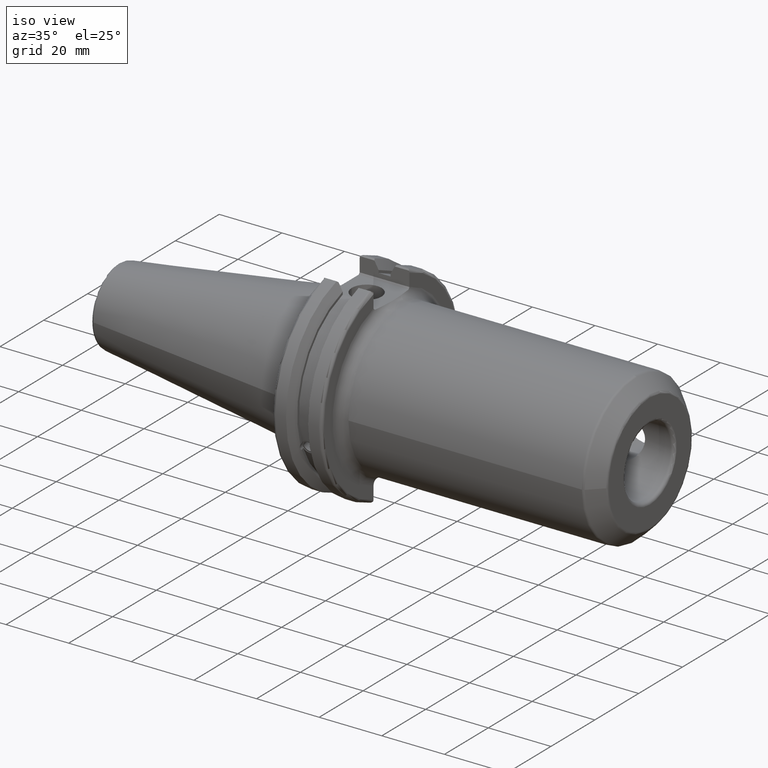
[diagram: clean part render]
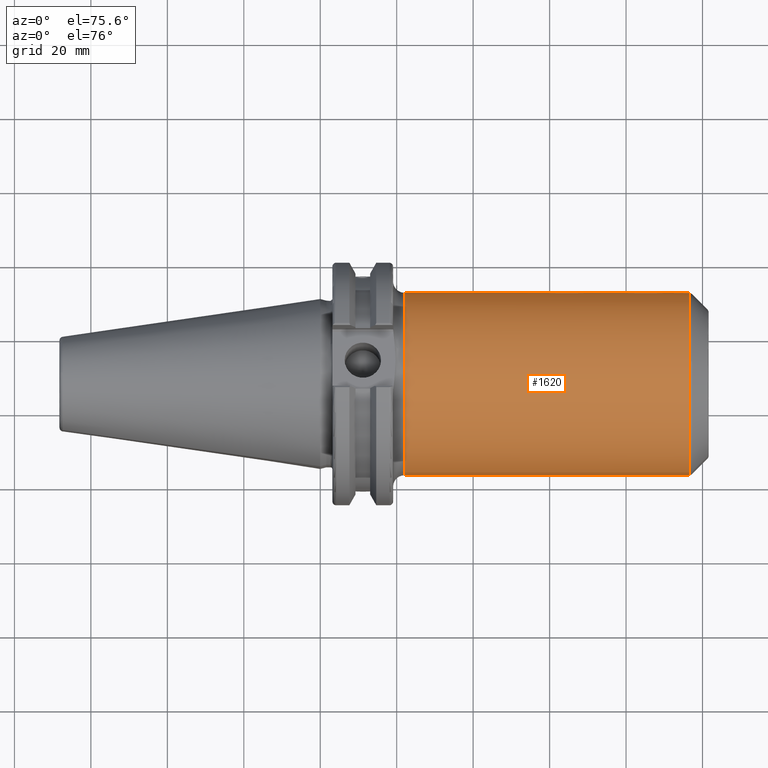
[diagram: tour spotlight — one face highlighted and labeled with its STEP entity id]
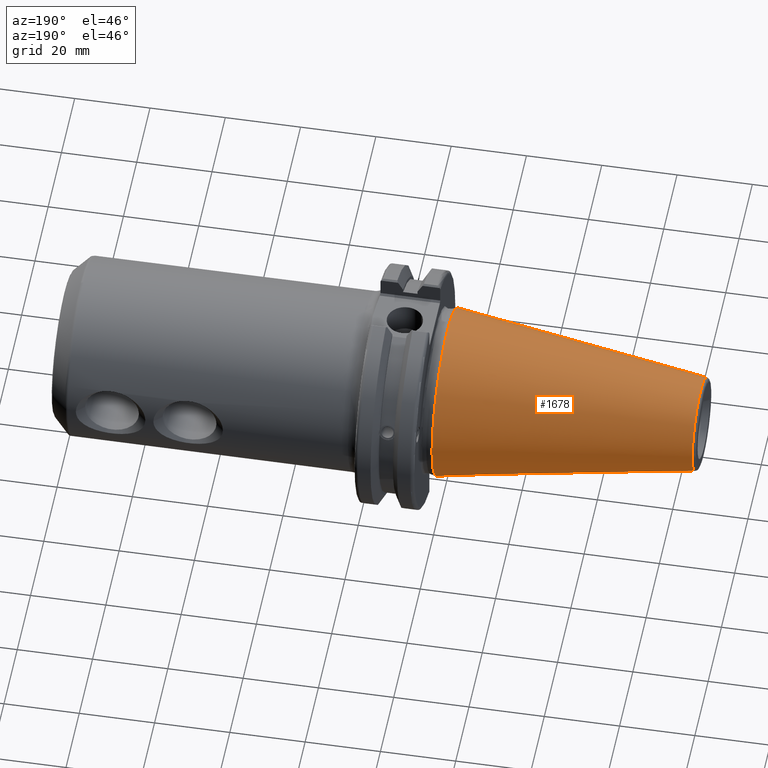
[diagram: tour spotlight — one face highlighted and labeled with its STEP entity id]
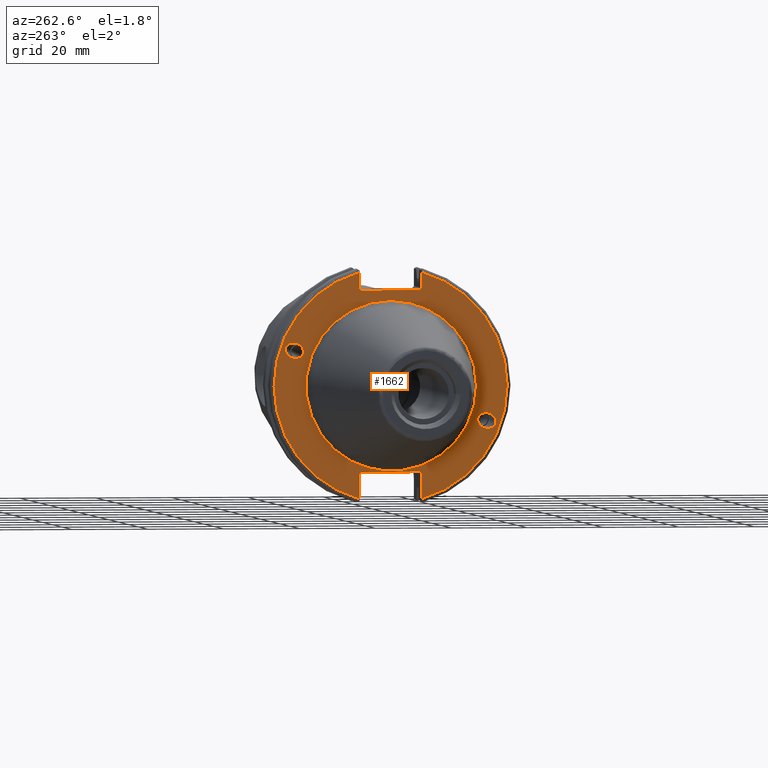
[diagram: tour spotlight — one face highlighted and labeled with its STEP entity id]
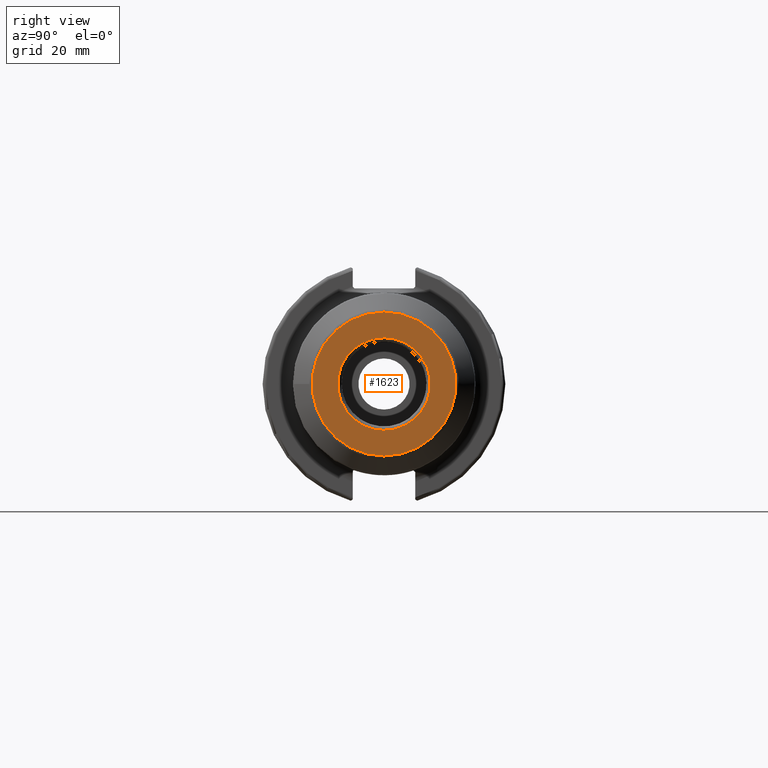
[diagram: tour spotlight — one face highlighted and labeled with its STEP entity id]
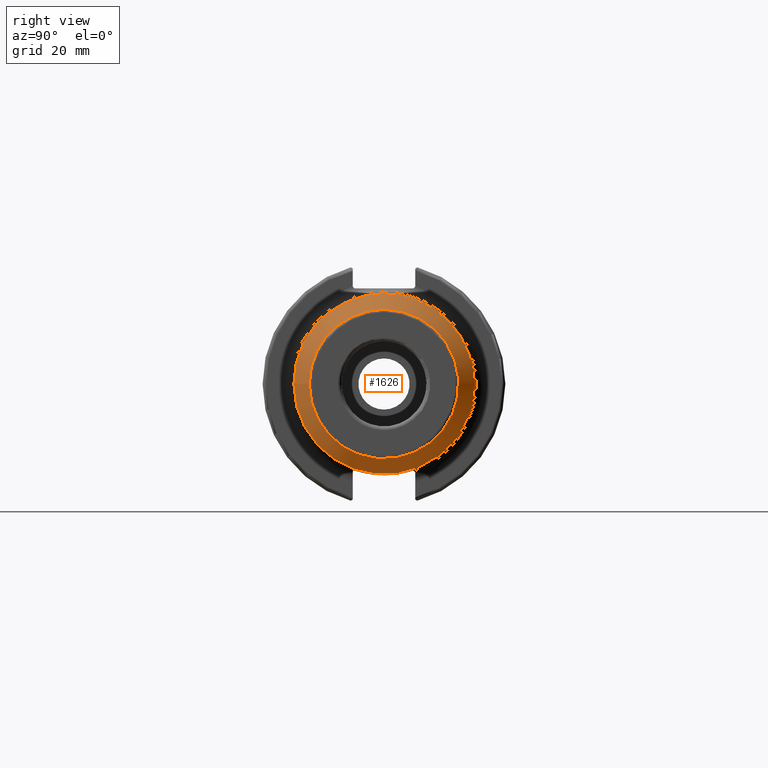
[diagram: tour spotlight — one face highlighted and labeled with its STEP entity id]
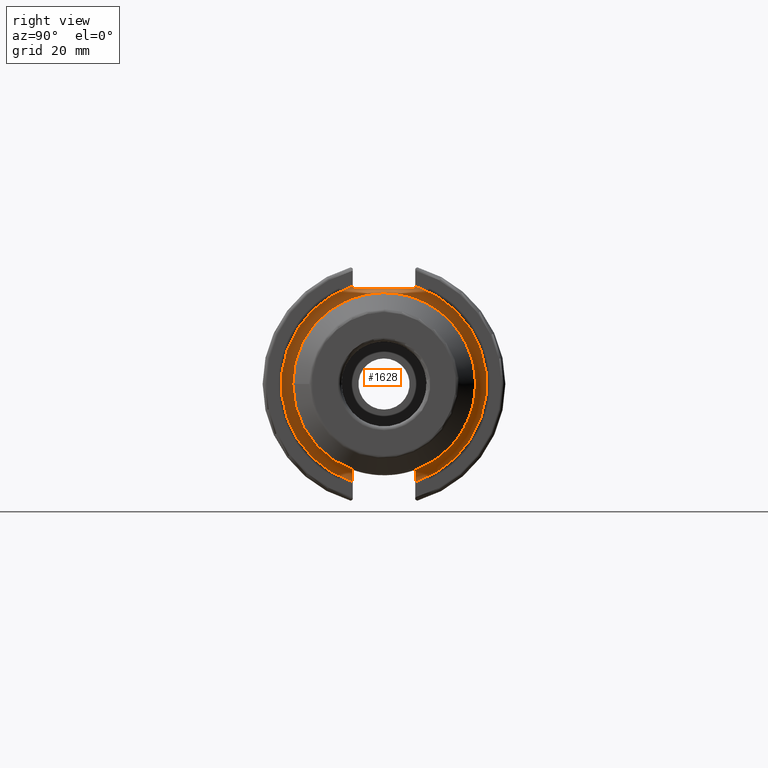
[diagram: tour spotlight — one face highlighted and labeled with its STEP entity id]
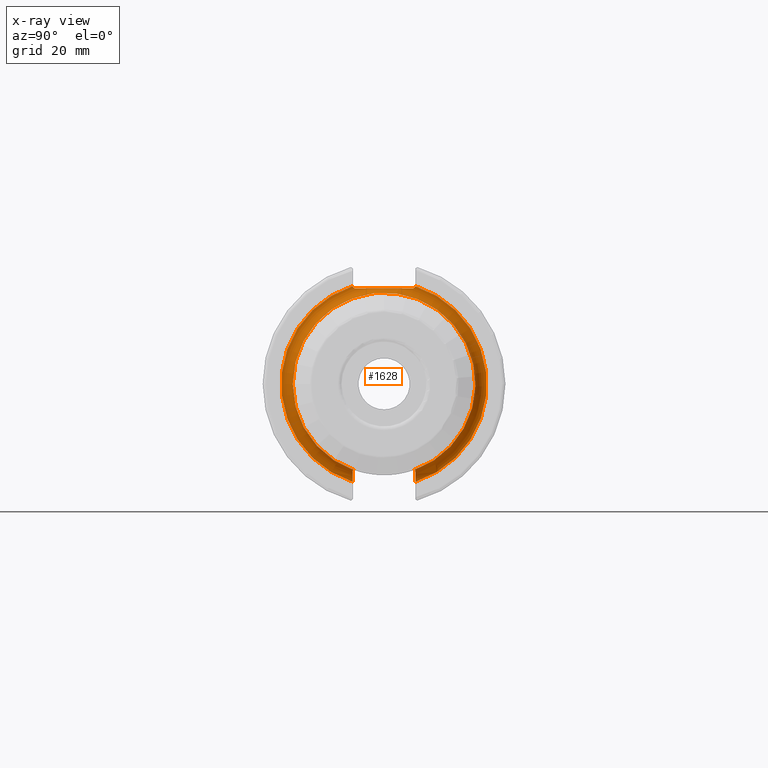
[diagram: x-ray of the same camera — body ghosted, this tour face saturated]
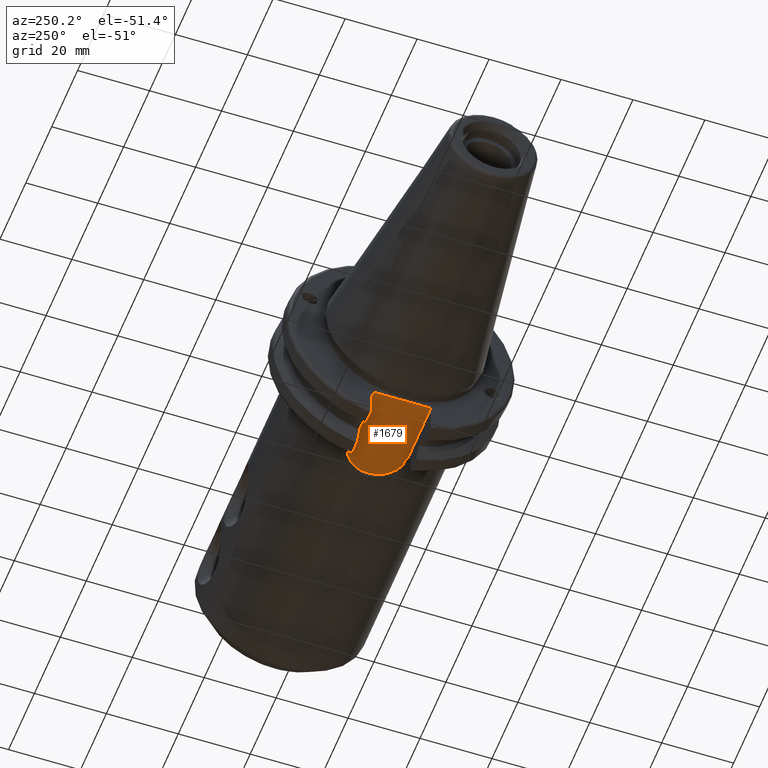
[diagram: tour spotlight — one face highlighted and labeled with its STEP entity id]
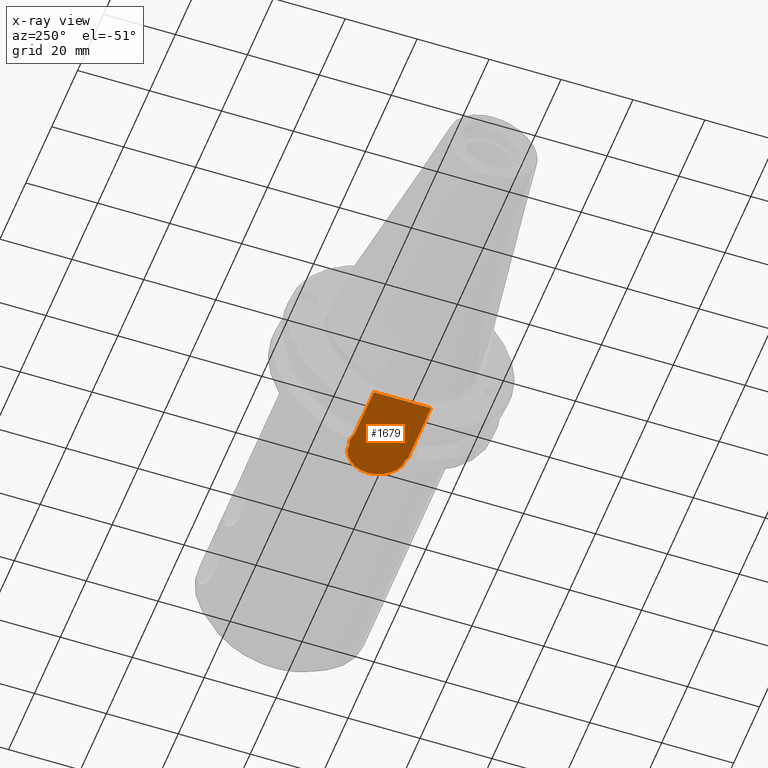
[diagram: x-ray of the same camera — body ghosted, this tour face saturated]
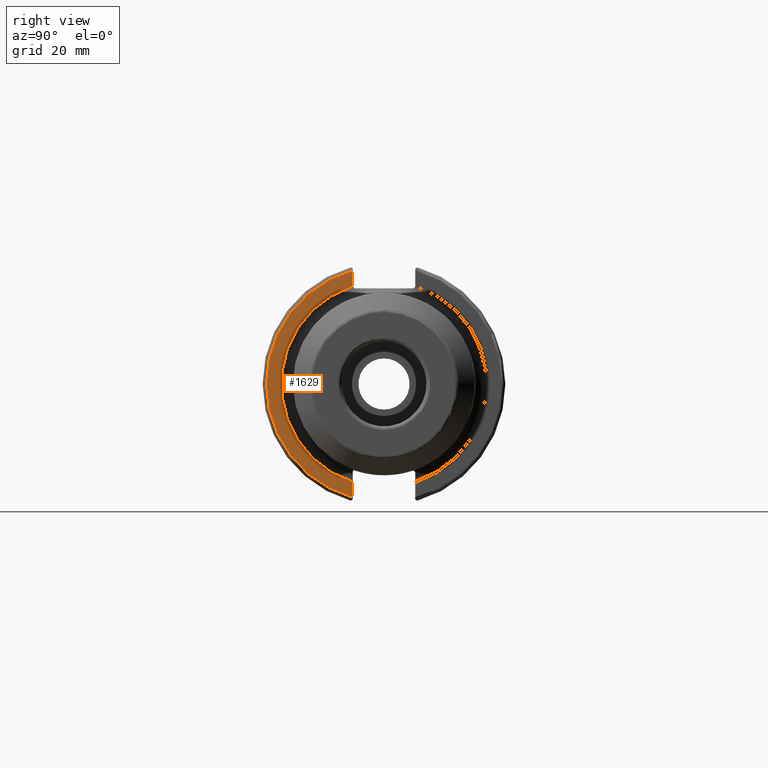
[diagram: tour spotlight — one face highlighted and labeled with its STEP entity id]
A machine part: a face-by-face anatomy tour. The part has 92 B-rep faces; the first image is the clean iso view, then the 8 largest visible faces are spotlighted one at a time (largest first), each with its STEP entity span.

Face 1 — auxiliary view, entity #1620. In plain terms, the highlighted cylindrical surface (bore or boss wall) has radius 23.876 mm, axis along (1, 0, 0).
Definition (entity closure, byte-faithful):
#78=FACE_BOUND('',#248,.T.);
#79=FACE_BOUND('',#249,.T.);
#121=CYLINDRICAL_SURFACE('',#1741,23.876);
#155=FACE_OUTER_BOUND('',#247,.T.);
#247=EDGE_LOOP('',(#1116,#1117,#1118,#1119,#1120,#1121,#1122,#1123,#1124));
#248=EDGE_LOOP('',(#1125,#1126));
#249=EDGE_LOOP('',(#1127,#1128));
#356=CIRCLE('',#1742,23.876);
#357=CIRCLE('',#1743,23.876);
#358=CIRCLE('',#1744,23.876);
#359=CIRCLE('',#1745,23.876);
#436=LINE('',#2608,#525);
#437=LINE('',#2611,#526);
#438=LINE('',#2613,#527);
#525=VECTOR('',#1956,23.876);
#526=VECTOR('',#1959,10.);
#527=VECTOR('',#1960,10.);
#609=B_SPLINE_CURVE_WITH_KNOTS('',3,(#2396,#2397,#2398,#2399,#2400,#2401,
#2402,#2403,#2404,#2405,#2406,#2407,#2408,#2409,#2410,#2411,#2412,#2413),
 .UNSPECIFIED.,.F.,.F.,(4,2,2,2,2,2,2,2,4),(1.30164426528755,1.63350766950352,
1.96537107371949,2.2843298021473,2.60328853057511,2.92224725900291,3.24120598743072,
3.57306939164669,3.90493279586266),.UNSPECIFIED.);
#610=B_SPLINE_CURVE_WITH_KNOTS('',3,(#2417,#2418,#2419,#2420,#2421,#2422,
#2423,#2424,#2425,#2426,#2427,#2428,#2429,#2430,#2431,#2432,#2433,#2434,
#2435),.UNSPECIFIED.,.F.,.F.,(4,2,2,2,3,2,2,2,4),(3.90493279586266,4.23679620007863,
4.56865960429459,4.8876183327224,5.20657706115021,5.52553578957802,5.84449451800583,
6.1763579222218,6.50822132643776),.UNSPECIFIED.);
#613=B_SPLINE_CURVE_WITH_KNOTS('',3,(#2479,#2480,#2481,#2482,#2483,#2484,
#2485,#2486,#2487,#2488,#2489,#2490,#2491,#2492,#2493,#2494,#2495,#2496),
 .UNSPECIFIED.,.F.,.F.,(4,2,2,2,2,2,2,2,4),(1.30164426528755,1.63350766950352,
1.96537107371949,2.2843298021473,2.6032885305751,2.92224725900291,3.24120598743072,
3.57306939164669,3.90493279586266),.UNSPECIFIED.);
#614=B_SPLINE_CURVE_WITH_KNOTS('',3,(#2500,#2501,#2502,#2503,#2504,#2505,
#2506,#2507,#2508,#2509,#2510,#2511,#2512,#2513,#2514,#2515,#2516,#2517,
#2518),.UNSPECIFIED.,.F.,.F.,(4,2,2,2,3,2,2,2,4),(3.90493279586266,4.23679620007862,
4.56865960429459,4.8876183327224,5.20657706115021,5.52553578957802,5.84449451800583,
6.1763579222218,6.50822132643776),.UNSPECIFIED.);
#618=B_SPLINE_CURVE_WITH_KNOTS('',3,(#2574,#2575,#2576,#2577,#2578,#2579,
#2580,#2581,#2582,#2583,#2584,#2585,#2586,#2587,#2588,#2589,#2590,#2591),
 .UNSPECIFIED.,.F.,.F.,(4,2,2,2,2,2,2,2,4),(-2.21524877204995,-2.17873571382765,
-1.86739460133672,-1.556216507248,-1.24503841315929,-0.933860319070577,
-0.622682224981864,-0.311341112490933,-0.274828054268635),.UNSPECIFIED.);
#661=VERTEX_POINT('',#2394);
#662=VERTEX_POINT('',#2395);
#666=VERTEX_POINT('',#2477);
#667=VERTEX_POINT('',#2478);
#674=VERTEX_POINT('',#2572);
#675=VERTEX_POINT('',#2573);
#679=VERTEX_POINT('',#2604);
#680=VERTEX_POINT('',#2605);
#681=VERTEX_POINT('',#2607);
#682=VERTEX_POINT('',#2609);
#683=VERTEX_POINT('',#2612);
#832=EDGE_CURVE('',#661,#662,#609,.T.);
#835=EDGE_CURVE('',#662,#661,#610,.T.);
#839=EDGE_CURVE('',#666,#667,#613,.T.);
#842=EDGE_CURVE('',#667,#666,#614,.T.);
#849=EDGE_CURVE('',#674,#675,#618,.T.);
#854=EDGE_CURVE('',#679,#680,#356,.T.);
#855=EDGE_CURVE('',#679,#681,#436,.T.);
#856=EDGE_CURVE('',#682,#681,#357,.T.);
#857=EDGE_CURVE('',#682,#674,#437,.T.);
#858=EDGE_CURVE('',#675,#683,#438,.T.);
#859=EDGE_CURVE('',#681,#683,#358,.T.);
#860=EDGE_CURVE('',#680,#679,#359,.T.);
#1116=ORIENTED_EDGE('',*,*,#854,.F.);
#1117=ORIENTED_EDGE('',*,*,#855,.T.);
#1118=ORIENTED_EDGE('',*,*,#856,.F.);
#1119=ORIENTED_EDGE('',*,*,#857,.T.);
#1120=ORIENTED_EDGE('',*,*,#849,.T.);
#1121=ORIENTED_EDGE('',*,*,#858,.T.);
#1122=ORIENTED_EDGE('',*,*,#859,.F.);
#1123=ORIENTED_EDGE('',*,*,#855,.F.);
#1124=ORIENTED_EDGE('',*,*,#860,.F.);
#1125=ORIENTED_EDGE('',*,*,#832,.T.);
#1126=ORIENTED_EDGE('',*,*,#835,.T.);
#1127=ORIENTED_EDGE('',*,*,#839,.T.);
#1128=ORIENTED_EDGE('',*,*,#842,.T.);
#1620=ADVANCED_FACE('',(#155,#78,#79),#121,.T.);
#1741=AXIS2_PLACEMENT_3D('',#2603,#1952,#1953);
#1742=AXIS2_PLACEMENT_3D('',#2606,#1954,#1955);
#1743=AXIS2_PLACEMENT_3D('',#2610,#1957,#1958);
#1744=AXIS2_PLACEMENT_3D('',#2614,#1961,#1962);
#1745=AXIS2_PLACEMENT_3D('',#2615,#1963,#1964);
#1952=DIRECTION('center_axis',(1.,0.,0.));
#1953=DIRECTION('ref_axis',(0.,1.,0.));
#1954=DIRECTION('center_axis',(1.,0.,0.));
#1955=DIRECTION('ref_axis',(0.,-1.,1.83697019872103E-16));
#1956=DIRECTION('',(-1.,0.,0.));
#1957=DIRECTION('center_axis',(-1.,0.,0.));
#1958=DIRECTION('ref_axis',(0.,5.0532154980743E-16,1.));
#1959=DIRECTION('',(1.,0.,0.));
#1960=DIRECTION('',(-1.,0.,0.));
#1961=DIRECTION('center_axis',(-1.,0.,0.));
#1962=DIRECTION('ref_axis',(0.,5.0532154980743E-16,1.));
#1963=DIRECTION('center_axis',(1.,0.,0.));
#1964=DIRECTION('ref_axis',(0.,-1.,1.83697019872103E-16));
#2394=CARTESIAN_POINT('',(73.735,23.876,0.));
#2395=CARTESIAN_POINT('',(55.265,23.876,0.));
#2396=CARTESIAN_POINT('Ctrl Pts',(73.735,23.876,8.32667268468867E-16));
#2397=CARTESIAN_POINT('Ctrl Pts',(73.735,23.876,1.10621134738656));
#2398=CARTESIAN_POINT('Ctrl Pts',(73.4431848261695,23.791811177919,2.24928569998615));
#2399=CARTESIAN_POINT('Ctrl Pts',(72.3562104438352,23.5122828537087,4.27575773642004));
#2400=CARTESIAN_POINT('Ctrl Pts',(71.5631280140084,23.3218102094673,5.16093685941274));
#2401=CARTESIAN_POINT('Ctrl Pts',(69.8704478059234,22.9903794553923,6.47673113367354));
#2402=CARTESIAN_POINT('Ctrl Pts',(68.8611809811826,22.8248688716155,7.01621592347484));
#2403=CARTESIAN_POINT('Ctrl Pts',(66.7077369051844,22.5950721774041,7.72428810806431));
#2404=CARTESIAN_POINT('Ctrl Pts',(65.563195761426,22.5337168771105,7.89271687711051));
#2405=CARTESIAN_POINT('Ctrl Pts',(63.436804238574,22.5337168771105,7.89271687711051));
#2406=CARTESIAN_POINT('Ctrl Pts',(62.2922630948156,22.5950721774041,7.72428810806431));
#2407=CARTESIAN_POINT('Ctrl Pts',(60.1388190188174,22.8248688716155,7.01621592347484));
#2408=CARTESIAN_POINT('Ctrl Pts',(59.1295521940765,22.9903794553923,6.47673113367354));
#2409=CARTESIAN_POINT('Ctrl Pts',(57.4368719859916,23.3218102094673,5.16093685941274));
#2410=CARTESIAN_POINT('Ctrl Pts',(56.6437895561648,23.5122828537087,4.27575773642004));
#2411=CARTESIAN_POINT('Ctrl Pts',(55.5568151738305,23.791811177919,2.24928569998615));
#2412=CARTESIAN_POINT('Ctrl Pts',(55.265,23.876,1.10621134738656));
#2413=CARTESIAN_POINT('Ctrl Pts',(55.265,23.876,1.38777878078145E-15));
#2417=CARTESIAN_POINT('Ctrl Pts',(55.265,23.876,2.63677968348475E-15));
#2418=CARTESIAN_POINT('Ctrl Pts',(55.265,23.876,-1.10621134738656));
#2419=CARTESIAN_POINT('Ctrl Pts',(55.5568151738305,23.791811177919,-2.24928569998615));
#2420=CARTESIAN_POINT('Ctrl Pts',(56.6437895561648,23.5122828537087,-4.27575773642004));
#2421=CARTESIAN_POINT('Ctrl Pts',(57.4368719859916,23.3218102094673,-5.16093685941274));
#2422=CARTESIAN_POINT('Ctrl Pts',(59.1295521940765,22.9903794553923,-6.47673113367354));
#2423=CARTESIAN_POINT('Ctrl Pts',(60.1388190188173,22.8248688716155,-7.01621592347483));
#2424=CARTESIAN_POINT('Ctrl Pts',(62.2922630948156,22.5950721774041,-7.72428810806431));
#2425=CARTESIAN_POINT('Ctrl Pts',(63.436804238574,22.5337168771105,-7.89271687711051));
#2426=CARTESIAN_POINT('Ctrl Pts',(64.5,22.5337168771105,-7.89271687711051));
#2427=CARTESIAN_POINT('Ctrl Pts',(65.563195761426,22.5337168771105,-7.89271687711051));
#2428=CARTESIAN_POINT('Ctrl Pts',(66.7077369051844,22.5950721774041,-7.72428810806431));
#2429=CARTESIAN_POINT('Ctrl Pts',(68.8611809811826,22.8248688716155,-7.01621592347484));
#2430=CARTESIAN_POINT('Ctrl Pts',(69.8704478059234,22.9903794553923,-6.47673113367354));
#2431=CARTESIAN_POINT('Ctrl Pts',(71.5631280140084,23.3218102094673,-5.16093685941274));
#2432=CARTESIAN_POINT('Ctrl Pts',(72.3562104438352,23.5122828537087,-4.27575773642004));
#2433=CARTESIAN_POINT('Ctrl Pts',(73.4431848261695,23.791811177919,-2.24928569998615));
#2434=CARTESIAN_POINT('Ctrl Pts',(73.735,23.876,-1.10621134738656));
#2435=CARTESIAN_POINT('Ctrl Pts',(73.735,23.876,-1.66533453693773E-15));
#2477=CARTESIAN_POINT('',(94.335,23.876,0.));
#2478=CARTESIAN_POINT('',(75.865,23.876,0.));
#2479=CARTESIAN_POINT('Ctrl Pts',(94.335,23.876,-2.4980018054066E-15));
#2480=CARTESIAN_POINT('Ctrl Pts',(94.335,23.876,1.10621134738656));
#2481=CARTESIAN_POINT('Ctrl Pts',(94.0431848261695,23.791811177919,2.24928569998616));
#2482=CARTESIAN_POINT('Ctrl Pts',(92.9562104438352,23.5122828537087,4.27575773642005));
#2483=CARTESIAN_POINT('Ctrl Pts',(92.1631280140084,23.3218102094673,5.16093685941274));
#2484=CARTESIAN_POINT('Ctrl Pts',(90.4704478059235,22.9903794553923,6.47673113367354));
#2485=CARTESIAN_POINT('Ctrl Pts',(89.4611809811826,22.8248688716155,7.01621592347483));
#2486=CARTESIAN_POINT('Ctrl Pts',(87.3077369051844,22.5950721774041,7.72428810806431));
#2487=CARTESIAN_POINT('Ctrl Pts',(86.163195761426,22.5337168771105,7.89271687711051));
#2488=CARTESIAN_POINT('Ctrl Pts',(84.036804238574,22.5337168771105,7.89271687711051));
#2489=CARTESIAN_POINT('Ctrl Pts',(82.8922630948156,22.5950721774041,7.72428810806431));
#2490=CARTESIAN_POINT('Ctrl Pts',(80.7388190188174,22.8248688716155,7.01621592347483));
#2491=CARTESIAN_POINT('Ctrl Pts',(79.7295521940765,22.9903794553923,6.47673113367354));
#2492=CARTESIAN_POINT('Ctrl Pts',(78.0368719859916,23.3218102094673,5.16093685941274));
#2493=CARTESIAN_POINT('Ctrl Pts',(77.2437895561648,23.5122828537087,4.27575773642005));
#2494=CARTESIAN_POINT('Ctrl Pts',(76.1568151738305,23.791811177919,2.24928569998616));
#2495=CARTESIAN_POINT('Ctrl Pts',(75.865,23.876,1.10621134738656));
#2496=CARTESIAN_POINT('Ctrl Pts',(75.865,23.876,6.93889390390723E-16));
#2500=CARTESIAN_POINT('Ctrl Pts',(75.865,23.876,3.60822483003176E-15));
#2501=CARTESIAN_POINT('Ctrl Pts',(75.865,23.876,-1.10621134738656));
#2502=CARTESIAN_POINT('Ctrl Pts',(76.1568151738305,23.791811177919,-2.24928569998615));
#2503=CARTESIAN_POINT('Ctrl Pts',(77.2437895561648,23.5122828537087,-4.27575773642004));
#2504=CARTESIAN_POINT('Ctrl Pts',(78.0368719859916,23.3218102094673,-5.16093685941274));
#2505=CARTESIAN_POINT('Ctrl Pts',(79.7295521940765,22.9903794553923,-6.47673113367354));
#2506=CARTESIAN_POINT('Ctrl Pts',(80.7388190188174,22.8248688716155,-7.01621592347483));
#2507=CARTESIAN_POINT('Ctrl Pts',(82.8922630948156,22.5950721774041,-7.72428810806431));
#2508=CARTESIAN_POINT('Ctrl Pts',(84.036804238574,22.5337168771105,-7.89271687711051));
#2509=CARTESIAN_POINT('Ctrl Pts',(85.1,22.5337168771105,-7.89271687711051));
#2510=CARTESIAN_POINT('Ctrl Pts',(86.163195761426,22.5337168771105,-7.89271687711051));
#2511=CARTESIAN_POINT('Ctrl Pts',(87.3077369051844,22.5950721774041,-7.72428810806431));
#2512=CARTESIAN_POINT('Ctrl Pts',(89.4611809811826,22.8248688716155,-7.01621592347483));
#2513=CARTESIAN_POINT('Ctrl Pts',(90.4704478059235,22.9903794553923,-6.47673113367354));
#2514=CARTESIAN_POINT('Ctrl Pts',(92.1631280140084,23.3218102094673,-5.16093685941274));
#2515=CARTESIAN_POINT('Ctrl Pts',(92.9562104438352,23.5122828537087,-4.27575773642005));
#2516=CARTESIAN_POINT('Ctrl Pts',(94.0431848261695,23.791811177919,-2.24928569998616));
#2517=CARTESIAN_POINT('Ctrl Pts',(94.335,23.876,-1.10621134738656));
#2518=CARTESIAN_POINT('Ctrl Pts',(94.335,23.876,-8.32667268468867E-16));
#2572=CARTESIAN_POINT('',(23.7729605449145,-7.70086852244601,-22.6));
#2573=CARTESIAN_POINT('',(23.7729605449145,7.70086852244601,-22.6));
#2574=CARTESIAN_POINT('Ctrl Pts',(23.7729605449145,-7.70086852244601,-22.6));
#2575=CARTESIAN_POINT('Ctrl Pts',(23.893336415216,-7.65728860987094,-22.6148496980956));
#2576=CARTESIAN_POINT('Ctrl Pts',(24.0127084469914,-7.61087758138303,-22.6305237376198));
#2577=CARTESIAN_POINT('Ctrl Pts',(25.1383477818503,-7.14258431918495,-22.7868848796164));
#2578=CARTESIAN_POINT('Ctrl Pts',(26.0535724938508,-6.5138365819848,-22.9823442766192));
#2579=CARTESIAN_POINT('Ctrl Pts',(27.4984582113923,-5.06895086444339,-23.3435938047945));
#2580=CARTESIAN_POINT('Ctrl Pts',(28.1274966869255,-4.15357641752024,-23.5339055317585));
#2581=CARTESIAN_POINT('Ctrl Pts',(28.9659904749666,-2.13804786116067,-23.8017994691804));
#2582=CARTESIAN_POINT('Ctrl Pts',(29.175,-1.03726031362904,-23.876));
#2583=CARTESIAN_POINT('Ctrl Pts',(29.175,1.03726031362905,-23.876));
#2584=CARTESIAN_POINT('Ctrl Pts',(28.9659904749666,2.13804786116067,-23.8017994691804));
#2585=CARTESIAN_POINT('Ctrl Pts',(28.1274966869255,4.15357641752024,-23.5339055317585));
#2586=CARTESIAN_POINT('Ctrl Pts',(27.4984582113923,5.06895086444339,-23.3435938047945));
#2587=CARTESIAN_POINT('Ctrl Pts',(26.0535724938508,6.5138365819848,-22.9823442766192));
#2588=CARTESIAN_POINT('Ctrl Pts',(25.1383477818503,7.14258431918494,-22.7868848796164));
#2589=CARTESIAN_POINT('Ctrl Pts',(24.0127084469914,7.61087758138303,-22.6305237376198));
#2590=CARTESIAN_POINT('Ctrl Pts',(23.893336415216,7.65728860987094,-22.6148496980956));
#2591=CARTESIAN_POINT('Ctrl Pts',(23.7729605449145,7.70086852244602,-22.6));
#2603=CARTESIAN_POINT('Origin',(58.012,0.,0.));
#2604=CARTESIAN_POINT('',(96.5597864376269,-23.876,-2.92396669764422E-15));
#2605=CARTESIAN_POINT('',(96.5597864376269,-2.92396669764422E-15,23.876));
#2606=CARTESIAN_POINT('Origin',(96.5597864376269,0.,0.));
#2607=CARTESIAN_POINT('',(22.05,-23.876,-2.92396669764422E-15));
#2608=CARTESIAN_POINT('',(58.012,-23.876,-2.92396669764422E-15));
#2609=CARTESIAN_POINT('',(22.05,-7.70086852244601,-22.6));
#2610=CARTESIAN_POINT('Origin',(22.05,0.,0.));
#2611=CARTESIAN_POINT('',(58.012,-7.70086852244601,-22.6));
#2612=CARTESIAN_POINT('',(22.05,7.70086852244601,-22.6));
#2613=CARTESIAN_POINT('',(58.012,7.70086852244601,-22.6));
#2614=CARTESIAN_POINT('Origin',(22.05,0.,0.));
#2615=CARTESIAN_POINT('Origin',(96.5597864376269,0.,0.));

Face 2 — auxiliary view, entity #1678. In plain terms, the highlighted conical surface has half-angle 8.297 deg.
Definition (entity closure, byte-faithful):
#213=FACE_OUTER_BOUND('',#322,.T.);
#322=EDGE_LOOP('',(#1469,#1470,#1471,#1472,#1473));
#414=CIRCLE('',#1874,12.3966635780937);
#415=CIRCLE('',#1875,12.3966635780937);
#419=CIRCLE('',#1881,22.225);
#502=LINE('',#3369,#591);
#591=VECTOR('',#2300,17.2484375);
#817=VERTEX_POINT('',#3356);
#818=VERTEX_POINT('',#3357);
#821=VERTEX_POINT('',#3367);
#1051=EDGE_CURVE('',#817,#818,#414,.T.);
#1052=EDGE_CURVE('',#818,#817,#415,.T.);
#1056=EDGE_CURVE('',#821,#821,#419,.T.);
#1057=EDGE_CURVE('',#821,#818,#502,.T.);
#1469=ORIENTED_EDGE('',*,*,#1056,.F.);
#1470=ORIENTED_EDGE('',*,*,#1057,.T.);
#1471=ORIENTED_EDGE('',*,*,#1051,.F.);
#1472=ORIENTED_EDGE('',*,*,#1052,.F.);
#1473=ORIENTED_EDGE('',*,*,#1057,.F.);
#1607=CONICAL_SURFACE('',#1880,17.2484375,0.144812498238939);
#1678=ADVANCED_FACE('',(#213),#1607,.T.);
#1874=AXIS2_PLACEMENT_3D('',#3358,#2284,#2285);
#1875=AXIS2_PLACEMENT_3D('',#3359,#2286,#2287);
#1880=AXIS2_PLACEMENT_3D('',#3366,#2296,#2297);
#1881=AXIS2_PLACEMENT_3D('',#3368,#2298,#2299);
#2284=DIRECTION('center_axis',(-1.,0.,0.));
#2285=DIRECTION('ref_axis',(0.,-1.,3.06161699786838E-17));
#2286=DIRECTION('center_axis',(-1.,0.,0.));
#2287=DIRECTION('ref_axis',(0.,-1.,3.06161699786838E-17));
#2296=DIRECTION('center_axis',(1.,0.,0.));
#2297=DIRECTION('ref_axis',(0.,1.,0.));
#2298=DIRECTION('center_axis',(1.,0.,0.));
#2299=DIRECTION('ref_axis',(0.,0.,-1.));
#2300=DIRECTION('',(-0.989532981063282,0.144306893071729,1.76724974695192E-17));
#3356=CARTESIAN_POINT('',(-67.3943068930717,-1.5181534371019E-15,12.3966635780937));
#3357=CARTESIAN_POINT('',(-67.3943068930718,-12.3966635780937,-1.5181534371019E-15));
#3358=CARTESIAN_POINT('Origin',(-67.3943068930717,0.,-1.89769179637738E-15));
#3359=CARTESIAN_POINT('Origin',(-67.3943068930717,0.,-1.89769179637738E-15));
#3366=CARTESIAN_POINT('Origin',(-34.125,0.,0.));
#3367=CARTESIAN_POINT('',(0.,-22.225,-2.72177751110499E-15));
#3368=CARTESIAN_POINT('Origin',(0.,0.,0.));
#3369=CARTESIAN_POINT('',(-34.125,-17.2484375,-2.11232437746682E-15));

Face 3 — auxiliary view, entity #1662. In plain terms, the highlighted planar face has unit normal (-1, 0, 0).
Definition (entity closure, byte-faithful):
#55=PLANE('',#1851);
#91=FACE_BOUND('',#303,.T.);
#92=FACE_BOUND('',#304,.T.);
#93=FACE_BOUND('',#305,.T.);
#106=ELLIPSE('',#1800,2.44154917752291,2.);
#115=ELLIPSE('',#1843,2.44154917752291,2.);
#197=FACE_OUTER_BOUND('',#302,.T.);
#302=EDGE_LOOP('',(#1358,#1359,#1360,#1361,#1362,#1363,#1364,#1365,#1366,
#1367,#1368));
#303=EDGE_LOOP('',(#1369));
#304=EDGE_LOOP('',(#1370));
#305=EDGE_LOOP('',(#1371));
#404=CIRCLE('',#1849,22.3);
#406=CIRCLE('',#1852,30.75);
#407=CIRCLE('',#1853,30.75);
#440=LINE('',#2620,#529);
#478=LINE('',#3147,#567);
#479=LINE('',#3151,#568);
#480=LINE('',#3153,#569);
#481=LINE('',#3155,#570);
#482=LINE('',#3157,#571);
#483=LINE('',#3159,#572);
#484=LINE('',#3162,#573);
#485=LINE('',#3163,#574);
#529=VECTOR('',#1968,10.);
#567=VECTOR('',#2216,10.);
#568=VECTOR('',#2219,10.);
#569=VECTOR('',#2220,10.);
#570=VECTOR('',#2221,10.);
#571=VECTOR('',#2222,10.);
#572=VECTOR('',#2223,10.);
#573=VECTOR('',#2226,10.);
#574=VECTOR('',#2227,10.);
#684=VERTEX_POINT('',#2617);
#685=VERTEX_POINT('',#2619);
#737=VERTEX_POINT('',#2946);
#777=VERTEX_POINT('',#3129);
#781=VERTEX_POINT('',#3140);
#782=VERTEX_POINT('',#3145);
#783=VERTEX_POINT('',#3146);
#784=VERTEX_POINT('',#3148);
#785=VERTEX_POINT('',#3150);
#786=VERTEX_POINT('',#3152);
#787=VERTEX_POINT('',#3154);
#788=VERTEX_POINT('',#3156);
#789=VERTEX_POINT('',#3158);
#790=VERTEX_POINT('',#3160);
#862=EDGE_CURVE('',#684,#685,#440,.T.);
#934=EDGE_CURVE('',#737,#737,#106,.T.);
#990=EDGE_CURVE('',#777,#777,#115,.T.);
#995=EDGE_CURVE('',#781,#781,#404,.T.);
#997=EDGE_CURVE('',#782,#783,#478,.T.);
#998=EDGE_CURVE('',#784,#783,#406,.T.);
#999=EDGE_CURVE('',#784,#785,#479,.T.);
#1000=EDGE_CURVE('',#786,#785,#480,.T.);
#1001=EDGE_CURVE('',#786,#787,#481,.T.);
#1002=EDGE_CURVE('',#788,#787,#482,.T.);
#1003=EDGE_CURVE('',#788,#789,#483,.T.);
#1004=EDGE_CURVE('',#790,#789,#407,.T.);
#1005=EDGE_CURVE('',#790,#685,#484,.T.);
#1006=EDGE_CURVE('',#684,#782,#485,.T.);
#1358=ORIENTED_EDGE('',*,*,#997,.T.);
#1359=ORIENTED_EDGE('',*,*,#998,.F.);
#1360=ORIENTED_EDGE('',*,*,#999,.T.);
#1361=ORIENTED_EDGE('',*,*,#1000,.F.);
#1362=ORIENTED_EDGE('',*,*,#1001,.T.);
#1363=ORIENTED_EDGE('',*,*,#1002,.F.);
#1364=ORIENTED_EDGE('',*,*,#1003,.T.);
#1365=ORIENTED_EDGE('',*,*,#1004,.F.);
#1366=ORIENTED_EDGE('',*,*,#1005,.T.);
#1367=ORIENTED_EDGE('',*,*,#862,.F.);
#1368=ORIENTED_EDGE('',*,*,#1006,.T.);
#1369=ORIENTED_EDGE('',*,*,#934,.T.);
#1370=ORIENTED_EDGE('',*,*,#990,.T.);
#1371=ORIENTED_EDGE('',*,*,#995,.F.);
#1662=ADVANCED_FACE('',(#197,#91,#92,#93),#55,.T.);
#1800=AXIS2_PLACEMENT_3D('',#2948,#2094,#2095);
#1843=AXIS2_PLACEMENT_3D('',#3131,#2197,#2198);
#1849=AXIS2_PLACEMENT_3D('',#3142,#2210,#2211);
#1851=AXIS2_PLACEMENT_3D('',#3144,#2214,#2215);
#1852=AXIS2_PLACEMENT_3D('',#3149,#2217,#2218);
#1853=AXIS2_PLACEMENT_3D('',#3161,#2224,#2225);
#1968=DIRECTION('',(0.,0.707106781186549,-0.707106781186546));
#2094=DIRECTION('center_axis',(1.,0.,0.));
#2095=DIRECTION('ref_axis',(0.,-0.939692620785912,-0.34202014332566));
#2197=DIRECTION('center_axis',(1.,0.,0.));
#2198=DIRECTION('ref_axis',(0.,0.939692620785912,0.34202014332566));
#2210=DIRECTION('center_axis',(-1.,0.,0.));
#2211=DIRECTION('ref_axis',(0.,-1.,1.83697019872103E-16));
#2214=DIRECTION('center_axis',(-1.,0.,0.));
#2215=DIRECTION('ref_axis',(0.,0.,1.));
#2216=DIRECTION('',(0.,0.,-1.));
#2217=DIRECTION('center_axis',(1.,0.,0.));
#2218=DIRECTION('ref_axis',(0.,-1.,1.60812264967664E-16));
#2219=DIRECTION('',(0.,0.,-1.));
#2220=DIRECTION('',(0.,-0.70710678118655,0.707106781186545));
#2221=DIRECTION('',(0.,1.,0.));
#2222=DIRECTION('',(0.,-0.707106781186549,-0.707106781186546));
#2223=DIRECTION('',(0.,0.,1.));
#2224=DIRECTION('center_axis',(1.,0.,0.));
#2225=DIRECTION('ref_axis',(0.,1.,1.60812264967664E-16));
#2226=DIRECTION('',(0.,0.,1.));
#2227=DIRECTION('',(0.,-1.,0.));
#2617=CARTESIAN_POINT('',(3.175,7.69,-22.6));
#2619=CARTESIAN_POINT('',(3.175,8.18999999999999,-23.1));
#2620=CARTESIAN_POINT('',(3.175,8.18000000000002,-23.09));
#2946=CARTESIAN_POINT('',(3.175,-23.0773950158153,-8.39948487016003));
#2948=CARTESIAN_POINT('Origin',(3.175,-25.3717007612195,-9.23454386979306));
#3129=CARTESIAN_POINT('',(3.175,23.0773950158153,8.39948487016003));
#3131=CARTESIAN_POINT('Origin',(3.175,25.3717007612195,9.23454386979306));
#3140=CARTESIAN_POINT('',(3.175,-2.7309623620986E-15,22.3));
#3142=CARTESIAN_POINT('Origin',(3.175,0.,0.));
#3144=CARTESIAN_POINT('Origin',(3.175,31.75,0.));
#3145=CARTESIAN_POINT('',(3.175,-8.19,-22.6));
#3146=CARTESIAN_POINT('',(3.175,-8.19,-29.6392712461019));
#3147=CARTESIAN_POINT('',(3.175,-8.19,-11.3));
#3148=CARTESIAN_POINT('',(3.175,-8.18999999999999,29.6392712461019));
#3149=CARTESIAN_POINT('Origin',(3.175,0.,0.));
#3150=CARTESIAN_POINT('',(3.175,-8.18999999999999,25.5));
#3151=CARTESIAN_POINT('',(3.175,-8.18999999999999,12.5));
#3152=CARTESIAN_POINT('',(3.175,-7.68999999999999,25.));
#3153=CARTESIAN_POINT('',(3.175,8.29500000000007,9.01500000000004));
#3154=CARTESIAN_POINT('',(3.175,7.69,25.));
#3155=CARTESIAN_POINT('',(3.175,15.875,25.));
#3156=CARTESIAN_POINT('',(3.175,8.19,25.5));
#3157=CARTESIAN_POINT('',(3.175,7.58000000000002,24.89));
#3158=CARTESIAN_POINT('',(3.175,8.19,29.6392712461019));
#3159=CARTESIAN_POINT('',(3.175,8.19,12.5));
#3160=CARTESIAN_POINT('',(3.175,8.18999999999999,-29.6392712461019));
#3161=CARTESIAN_POINT('Origin',(3.175,0.,0.));
#3162=CARTESIAN_POINT('',(3.175,8.18999999999999,-11.3));
#3163=CARTESIAN_POINT('',(3.175,15.875,-22.6));

Face 4 — right view, entity #1623. In plain terms, the highlighted planar face has unit normal (1, 0, 0).
Definition (entity closure, byte-faithful):
#42=PLANE('',#1752);
#80=FACE_BOUND('',#253,.T.);
#158=FACE_OUTER_BOUND('',#252,.T.);
#252=EDGE_LOOP('',(#1139));
#253=EDGE_LOOP('',(#1140));
#363=CIRCLE('',#1751,12.1125);
#364=CIRCLE('',#1753,18.8357864376269);
#689=VERTEX_POINT('',#2632);
#690=VERTEX_POINT('',#2636);
#868=EDGE_CURVE('',#689,#689,#363,.T.);
#869=EDGE_CURVE('',#690,#690,#364,.T.);
#1139=ORIENTED_EDGE('',*,*,#869,.F.);
#1140=ORIENTED_EDGE('',*,*,#868,.F.);
#1623=ADVANCED_FACE('',(#158,#80),#42,.T.);
#1751=AXIS2_PLACEMENT_3D('',#2634,#1978,#1979);
#1752=AXIS2_PLACEMENT_3D('',#2635,#1980,#1981);
#1753=AXIS2_PLACEMENT_3D('',#2637,#1982,#1983);
#1978=DIRECTION('center_axis',(1.,0.,0.));
#1979=DIRECTION('ref_axis',(0.,-1.,1.83697019872103E-16));
#1980=DIRECTION('center_axis',(1.,0.,0.));
#1981=DIRECTION('ref_axis',(0.,0.,-1.));
#1982=DIRECTION('center_axis',(-1.,0.,0.));
#1983=DIRECTION('ref_axis',(0.,-1.,1.83697019872103E-16));
#2632=CARTESIAN_POINT('',(101.6,-1.48335343546723E-15,12.1125));
#2634=CARTESIAN_POINT('Origin',(101.6,0.,0.));
#2635=CARTESIAN_POINT('Origin',(101.6,11.1125,0.));
#2636=CARTESIAN_POINT('',(101.6,-2.30671855702629E-15,18.8357864376269));
#2637=CARTESIAN_POINT('Origin',(101.6,0.,0.));

Face 5 — right view, entity #1626. In plain terms, the highlighted conical surface has half-angle 45 deg.
Definition (entity closure, byte-faithful):
#161=FACE_OUTER_BOUND('',#258,.T.);
#258=EDGE_LOOP('',(#1155,#1156,#1157,#1158,#1159,#1160));
#367=CIRCLE('',#1758,19.5428932188134);
#368=CIRCLE('',#1759,19.5428932188134);
#369=CIRCLE('',#1761,23.5831067811865);
#370=CIRCLE('',#1762,23.5831067811865);
#443=LINE('',#2650,#532);
#532=VECTOR('',#1999,21.563);
#692=VERTEX_POINT('',#2643);
#693=VERTEX_POINT('',#2645);
#694=VERTEX_POINT('',#2649);
#695=VERTEX_POINT('',#2651);
#873=EDGE_CURVE('',#692,#693,#367,.T.);
#874=EDGE_CURVE('',#693,#692,#368,.T.);
#875=EDGE_CURVE('',#693,#694,#443,.T.);
#876=EDGE_CURVE('',#695,#694,#369,.T.);
#877=EDGE_CURVE('',#694,#695,#370,.T.);
#1155=ORIENTED_EDGE('',*,*,#874,.F.);
#1156=ORIENTED_EDGE('',*,*,#875,.T.);
#1157=ORIENTED_EDGE('',*,*,#876,.F.);
#1158=ORIENTED_EDGE('',*,*,#877,.F.);
#1159=ORIENTED_EDGE('',*,*,#875,.F.);
#1160=ORIENTED_EDGE('',*,*,#873,.F.);
#1602=CONICAL_SURFACE('',#1760,21.563,0.785398163397449);
#1626=ADVANCED_FACE('',(#161),#1602,.T.);
#1758=AXIS2_PLACEMENT_3D('',#2646,#1993,#1994);
#1759=AXIS2_PLACEMENT_3D('',#2647,#1995,#1996);
#1760=AXIS2_PLACEMENT_3D('',#2648,#1997,#1998);
#1761=AXIS2_PLACEMENT_3D('',#2652,#2000,#2001);
#1762=AXIS2_PLACEMENT_3D('',#2653,#2002,#2003);
#1993=DIRECTION('center_axis',(1.,0.,0.));
#1994=DIRECTION('ref_axis',(0.,-1.,3.06161699786838E-17));
#1995=DIRECTION('center_axis',(1.,0.,0.));
#1996=DIRECTION('ref_axis',(0.,-1.,3.06161699786838E-17));
#1997=DIRECTION('center_axis',(-1.,0.,0.));
#1998=DIRECTION('ref_axis',(0.,1.,0.));
#1999=DIRECTION('',(-0.707106781186547,-0.707106781186548,-8.65956056235494E-17));
#2000=DIRECTION('center_axis',(-1.,0.,0.));
#2001=DIRECTION('ref_axis',(0.,-1.,3.06161699786838E-17));
#2002=DIRECTION('center_axis',(-1.,0.,0.));
#2003=DIRECTION('ref_axis',(0.,-1.,3.06161699786838E-17));
#2643=CARTESIAN_POINT('',(101.307106781187,-2.39331416264984E-15,19.5428932188134));
#2645=CARTESIAN_POINT('',(101.307106781187,-19.5428932188134,-2.39331416264984E-15));
#2646=CARTESIAN_POINT('Origin',(101.307106781187,0.,-2.9916427033123E-15));
#2647=CARTESIAN_POINT('Origin',(101.307106781187,0.,-2.9916427033123E-15));
#2648=CARTESIAN_POINT('Origin',(99.287,0.,0.));
#2649=CARTESIAN_POINT('',(97.2668932188135,-23.5831067811866,-2.88809762335303E-15));
#2650=CARTESIAN_POINT('',(99.287,-21.563,-2.64070589300144E-15));
#2651=CARTESIAN_POINT('',(97.2668932188135,-2.88809762335303E-15,23.5831067811865));
#2652=CARTESIAN_POINT('Origin',(97.2668932188135,0.,-3.61012202919129E-15));
#2653=CARTESIAN_POINT('Origin',(97.2668932188135,0.,-3.61012202919129E-15));

Face 6 — right view, entity #1628. An x-ray twin of the same camera follows (body ghosted, this face saturated) — the face is partly hidden behind the body. In plain terms, the highlighted toroidal blend (fillet) surface has major radius 26.876 mm and minor (blend) radius 3 mm.
Definition (entity closure, byte-faithful):
#34=TOROIDAL_SURFACE('',#1765,26.876,3.);
#163=FACE_OUTER_BOUND('',#260,.T.);
#260=EDGE_LOOP('',(#1167,#1168,#1169,#1170,#1171,#1172,#1173,#1174,#1175,
#1176,#1177,#1178,#1179,#1180,#1181,#1182,#1183));
#357=CIRCLE('',#1743,23.876);
#358=CIRCLE('',#1744,23.876);
#372=CIRCLE('',#1766,26.876);
#373=CIRCLE('',#1767,26.876);
#617=B_SPLINE_CURVE_WITH_KNOTS('',3,(#2562,#2563,#2564,#2565,#2566,#2567),
 .UNSPECIFIED.,.F.,.F.,(4,2,4),(-0.386102880067311,-0.324274466434063,-0.290908849014601),
 .UNSPECIFIED.);
#619=B_SPLINE_CURVE_WITH_KNOTS('',3,(#2596,#2597,#2598,#2599),
 .UNSPECIFIED.,.F.,.F.,(4,4),(-0.00990092029625313,0.),.UNSPECIFIED.);
#620=B_SPLINE_CURVE_WITH_KNOTS('',3,(#2623,#2624,#2625,#2626),
 .UNSPECIFIED.,.F.,.F.,(4,4),(1.11119444079567,1.11773294765053),
 .UNSPECIFIED.);
#621=B_SPLINE_CURVE_WITH_KNOTS('',3,(#2657,#2658,#2659,#2660,#2661,#2662,
#2663,#2664),.UNSPECIFIED.,.F.,.F.,(4,2,2,4),(1.24716579775041,1.27283308836636,
1.31785492208874,1.35337360154452),.UNSPECIFIED.);
#622=B_SPLINE_CURVE_WITH_KNOTS('',3,(#2665,#2666,#2667,#2668,#2669,#2670,
#2671,#2672),.UNSPECIFIED.,.F.,.F.,(4,2,2,4),(1.35337360154452,1.3888922810003,
1.43391411472267,1.45958140533862),.UNSPECIFIED.);
#623=B_SPLINE_CURVE_WITH_KNOTS('',3,(#2674,#2675,#2676,#2677,#2678,#2679,
#2680,#2681),.UNSPECIFIED.,.F.,.F.,(4,2,2,4),(1.09937688280076,1.13273906537071,
1.24912971242789,1.36790240305461),.UNSPECIFIED.);
#624=B_SPLINE_CURVE_WITH_KNOTS('',3,(#2685,#2686,#2687,#2688),
 .UNSPECIFIED.,.F.,.F.,(4,4),(0.454409762073988,0.464050132239487),
 .UNSPECIFIED.);
#625=B_SPLINE_CURVE_WITH_KNOTS('',3,(#2690,#2691,#2692,#2693),
 .UNSPECIFIED.,.F.,.F.,(4,4),(0.479510612938579,0.545924532443584),
 .UNSPECIFIED.);
#626=B_SPLINE_CURVE_WITH_KNOTS('',3,(#2695,#2696,#2697,#2698,#2699,#2700,
#2701,#2702,#2703,#2704,#2705,#2706,#2707,#2708),.UNSPECIFIED.,.F.,.F.,
(4,2,2,2,2,2,4),(2.5982442477704,2.69300090795709,3.00822809968691,3.32345529141672,
3.63868248314654,3.95390967487636,4.04866633401975),.UNSPECIFIED.);
#627=B_SPLINE_CURVE_WITH_KNOTS('',3,(#2710,#2711,#2712,#2713),
 .UNSPECIFIED.,.F.,.F.,(4,4),(1.34402426777753,1.41043818841018),
 .UNSPECIFIED.);
#628=B_SPLINE_CURVE_WITH_KNOTS('',3,(#2715,#2716,#2717,#2718),
 .UNSPECIFIED.,.F.,.F.,(4,4),(1.35826203289011,1.36790240305461),
 .UNSPECIFIED.);
#629=B_SPLINE_CURVE_WITH_KNOTS('',3,(#2722,#2723,#2724,#2725,#2726,#2727,
#2728,#2729),.UNSPECIFIED.,.F.,.F.,(4,2,2,4),(0.454409762073988,0.573182452700709,
0.689573099757891,0.722935282327091),.UNSPECIFIED.);
#630=B_SPLINE_CURVE_WITH_KNOTS('',3,(#2730,#2731,#2732,#2733,#2734,#2735),
 .UNSPECIFIED.,.F.,.F.,(4,2,4),(0.722935282327091,0.802140600437802,0.80848220647814),
 .UNSPECIFIED.);
#671=VERTEX_POINT('',#2560);
#672=VERTEX_POINT('',#2561);
#676=VERTEX_POINT('',#2594);
#677=VERTEX_POINT('',#2595);
#681=VERTEX_POINT('',#2607);
#682=VERTEX_POINT('',#2609);
#683=VERTEX_POINT('',#2612);
#686=VERTEX_POINT('',#2621);
#696=VERTEX_POINT('',#2673);
#697=VERTEX_POINT('',#2682);
#698=VERTEX_POINT('',#2684);
#699=VERTEX_POINT('',#2689);
#700=VERTEX_POINT('',#2694);
#701=VERTEX_POINT('',#2709);
#702=VERTEX_POINT('',#2714);
#703=VERTEX_POINT('',#2719);
#704=VERTEX_POINT('',#2721);
#846=EDGE_CURVE('',#671,#672,#617,.T.);
#851=EDGE_CURVE('',#676,#677,#619,.T.);
#856=EDGE_CURVE('',#682,#681,#357,.T.);
#859=EDGE_CURVE('',#681,#683,#358,.T.);
#864=EDGE_CURVE('',#672,#686,#620,.T.);
#879=EDGE_CURVE('',#677,#682,#621,.T.);
#880=EDGE_CURVE('',#683,#671,#622,.T.);
#881=EDGE_CURVE('',#686,#696,#623,.T.);
#882=EDGE_CURVE('',#696,#697,#372,.T.);
#883=EDGE_CURVE('',#698,#697,#624,.F.);
#884=EDGE_CURVE('',#699,#698,#625,.F.);
#885=EDGE_CURVE('',#700,#699,#626,.F.);
#886=EDGE_CURVE('',#701,#700,#627,.F.);
#887=EDGE_CURVE('',#702,#701,#628,.F.);
#888=EDGE_CURVE('',#702,#703,#373,.T.);
#889=EDGE_CURVE('',#704,#703,#629,.F.);
#890=EDGE_CURVE('',#704,#676,#630,.T.);
#1167=ORIENTED_EDGE('',*,*,#879,.T.);
#1168=ORIENTED_EDGE('',*,*,#856,.T.);
#1169=ORIENTED_EDGE('',*,*,#859,.T.);
#1170=ORIENTED_EDGE('',*,*,#880,.T.);
#1171=ORIENTED_EDGE('',*,*,#846,.T.);
#1172=ORIENTED_EDGE('',*,*,#864,.T.);
#1173=ORIENTED_EDGE('',*,*,#881,.T.);
#1174=ORIENTED_EDGE('',*,*,#882,.T.);
#1175=ORIENTED_EDGE('',*,*,#883,.F.);
#1176=ORIENTED_EDGE('',*,*,#884,.F.);
#1177=ORIENTED_EDGE('',*,*,#885,.F.);
#1178=ORIENTED_EDGE('',*,*,#886,.F.);
#1179=ORIENTED_EDGE('',*,*,#887,.F.);
#1180=ORIENTED_EDGE('',*,*,#888,.T.);
#1181=ORIENTED_EDGE('',*,*,#889,.F.);
#1182=ORIENTED_EDGE('',*,*,#890,.T.);
#1183=ORIENTED_EDGE('',*,*,#851,.T.);
#1628=ADVANCED_FACE('',(#163),#34,.F.);
#1743=AXIS2_PLACEMENT_3D('',#2610,#1957,#1958);
#1744=AXIS2_PLACEMENT_3D('',#2614,#1961,#1962);
#1765=AXIS2_PLACEMENT_3D('',#2656,#2008,#2009);
#1766=AXIS2_PLACEMENT_3D('',#2683,#2010,#2011);
#1767=AXIS2_PLACEMENT_3D('',#2720,#2012,#2013);
#1957=DIRECTION('center_axis',(-1.,0.,0.));
#1958=DIRECTION('ref_axis',(0.,5.0532154980743E-16,1.));
#1961=DIRECTION('center_axis',(-1.,0.,0.));
#1962=DIRECTION('ref_axis',(0.,5.0532154980743E-16,1.));
#2008=DIRECTION('center_axis',(-1.,0.,0.));
#2009=DIRECTION('ref_axis',(0.,0.,1.));
#2010=DIRECTION('center_axis',(1.,0.,0.));
#2011=DIRECTION('ref_axis',(0.,5.0532154980743E-16,1.));
#2012=DIRECTION('center_axis',(1.,0.,0.));
#2013=DIRECTION('ref_axis',(0.,5.0532154980743E-16,1.));
#2560=CARTESIAN_POINT('',(21.077371236704,8.18947907712266,-22.6));
#2561=CARTESIAN_POINT('',(20.2607876761596,8.15791741285555,-23.067917413158));
#2562=CARTESIAN_POINT('Ctrl Pts',(21.077371236704,8.18947907712266,-22.6));
#2563=CARTESIAN_POINT('Ctrl Pts',(20.8843588780048,8.19165611306161,-22.6695697309492));
#2564=CARTESIAN_POINT('Ctrl Pts',(20.7006900312327,8.1868816085059,-22.7616079455549));
#2565=CARTESIAN_POINT('Ctrl Pts',(20.4354852177441,8.17207446098657,-22.9326478324855));
#2566=CARTESIAN_POINT('Ctrl Pts',(20.3461860083727,8.1654985783663,-22.9979333590029));
#2567=CARTESIAN_POINT('Ctrl Pts',(20.2607876762702,8.1579174125605,-23.067917413261));
#2594=CARTESIAN_POINT('',(20.985,-8.19,-22.6352877346464));
#2595=CARTESIAN_POINT('',(21.077371236704,-8.18947907712266,-22.6));
#2596=CARTESIAN_POINT('Ctrl Pts',(20.985,-8.19,-22.6352877346464));
#2597=CARTESIAN_POINT('Ctrl Pts',(21.0155321665122,-8.19,-22.6229580542169));
#2598=CARTESIAN_POINT('Ctrl Pts',(21.0463251879125,-8.18982925347632,-22.6111902951501));
#2599=CARTESIAN_POINT('Ctrl Pts',(21.077371236704,-8.18947907712266,-22.6));
#2607=CARTESIAN_POINT('',(22.05,-23.876,-2.92396669764422E-15));
#2609=CARTESIAN_POINT('',(22.05,-7.70086852244601,-22.6));
#2610=CARTESIAN_POINT('Origin',(22.05,0.,0.));
#2612=CARTESIAN_POINT('',(22.05,7.70086852244601,-22.6));
#2614=CARTESIAN_POINT('Origin',(22.05,0.,0.));
#2621=CARTESIAN_POINT('',(20.2069509122659,8.19000000000004,-23.1000000000001));
#2623=CARTESIAN_POINT('Ctrl Pts',(20.2607876761327,8.15791741315804,-23.067917413158));
#2624=CARTESIAN_POINT('Ctrl Pts',(20.2426077275773,8.16850195251565,-23.0785019525157));
#2625=CARTESIAN_POINT('Ctrl Pts',(20.2246556056359,8.17920241483932,-23.0892024148393));
#2626=CARTESIAN_POINT('Ctrl Pts',(20.2069509123791,8.18999999993103,-23.099999999931));
#2656=CARTESIAN_POINT('Origin',(22.05,0.,0.));
#2657=CARTESIAN_POINT('Ctrl Pts',(21.077371236704,-8.18947907712266,-22.6));
#2658=CARTESIAN_POINT('Ctrl Pts',(21.140183091879,-8.12629233719368,-22.6));
#2659=CARTESIAN_POINT('Ctrl Pts',(21.2049713071296,-8.06730742584929,-22.6));
#2660=CARTESIAN_POINT('Ctrl Pts',(21.3886222014426,-7.91967937554335,-22.6));
#2661=CARTESIAN_POINT('Ctrl Pts',(21.5413936319375,-7.82432562253828,-22.6));
#2662=CARTESIAN_POINT('Ctrl Pts',(21.792313628471,-7.728856125166,-22.6));
#2663=CARTESIAN_POINT('Ctrl Pts',(21.9316044018141,-7.70086852244601,-22.6));
#2664=CARTESIAN_POINT('Ctrl Pts',(22.05,-7.70086852244601,-22.6));
#2665=CARTESIAN_POINT('Ctrl Pts',(22.05,7.70086852244601,-22.6));
#2666=CARTESIAN_POINT('Ctrl Pts',(21.9316044018141,7.70086852244601,-22.6));
#2667=CARTESIAN_POINT('Ctrl Pts',(21.792313628471,7.728856125166,-22.6));
#2668=CARTESIAN_POINT('Ctrl Pts',(21.5413936319375,7.82432562253828,-22.6));
#2669=CARTESIAN_POINT('Ctrl Pts',(21.3886222014426,7.91967937554335,-22.6));
#2670=CARTESIAN_POINT('Ctrl Pts',(21.2049713071296,8.06730742584929,-22.6));
#2671=CARTESIAN_POINT('Ctrl Pts',(21.140183091879,8.12629233719368,-22.6));
#2672=CARTESIAN_POINT('Ctrl Pts',(21.077371236704,8.18947907712266,-22.6));
#2673=CARTESIAN_POINT('',(19.05,8.19,-25.5977201328556));
#2674=CARTESIAN_POINT('Ctrl Pts',(20.206950912272,8.19,-23.0999999999951));
#2675=CARTESIAN_POINT('Ctrl Pts',(20.114770952661,8.19,-23.176149722533));
#2676=CARTESIAN_POINT('Ctrl Pts',(20.028993204295,8.19,-23.2563177136453));
#2677=CARTESIAN_POINT('Ctrl Pts',(19.6825018989717,8.19,-23.6156511978987));
#2678=CARTESIAN_POINT('Ctrl Pts',(19.4313872804033,8.19,-24.0076843239219));
#2679=CARTESIAN_POINT('Ctrl Pts',(19.1396703574018,8.19,-24.7352594953398));
#2680=CARTESIAN_POINT('Ctrl Pts',(19.05,8.19,-25.2018111640998));
#2681=CARTESIAN_POINT('Ctrl Pts',(19.05,8.19,-25.5977201328556));
#2682=CARTESIAN_POINT('',(19.05,8.19,25.5977201328556));
#2683=CARTESIAN_POINT('Origin',(19.05,0.,0.));
#2684=CARTESIAN_POINT('',(19.0514435776504,8.18999999999751,25.4999999999925));
#2685=CARTESIAN_POINT('Ctrl Pts',(19.05,8.19,25.5977201328556));
#2686=CARTESIAN_POINT('Ctrl Pts',(19.05,8.19,25.5655855656373));
#2687=CARTESIAN_POINT('Ctrl Pts',(19.0504690958043,8.19,25.5329807604497));
#2688=CARTESIAN_POINT('Ctrl Pts',(19.0514435776503,8.19,25.4999999999925));
#2689=CARTESIAN_POINT('',(19.1376824479696,7.69000001127472,25.0000000056374));
#2690=CARTESIAN_POINT('Ctrl Pts',(19.0514435776503,8.18999999999501,25.499999999995));
#2691=CARTESIAN_POINT('Ctrl Pts',(19.0577134909456,8.02938443975233,25.3393844397523));
#2692=CARTESIAN_POINT('Ctrl Pts',(19.0862191875199,7.85655480883607,25.1665548088361));
#2693=CARTESIAN_POINT('Ctrl Pts',(19.1376824488016,7.69000000858185,25.0000000085819));
#2694=CARTESIAN_POINT('',(19.1376824514381,-7.69000000015696,25.0000000000523));
#2695=CARTESIAN_POINT('Ctrl Pts',(19.1376824506201,7.69000001146293,25.));
#2696=CARTESIAN_POINT('Ctrl Pts',(19.1625604410244,7.3477340416941,25.));
#2697=CARTESIAN_POINT('Ctrl Pts',(19.1909267495362,7.01296912209475,25.));
#2698=CARTESIAN_POINT('Ctrl Pts',(19.3146466893475,5.65196800887506,25.));
#2699=CARTESIAN_POINT('Ctrl Pts',(19.4450175874642,4.50344584961346,25.));
#2700=CARTESIAN_POINT('Ctrl Pts',(19.6467687258613,2.20324028234168,25.));
#2701=CARTESIAN_POINT('Ctrl Pts',(19.7089267418554,1.05075730576606,25.));
#2702=CARTESIAN_POINT('Ctrl Pts',(19.7089267418554,-1.05075730576606,25.));
#2703=CARTESIAN_POINT('Ctrl Pts',(19.6467687258613,-2.20324028234168,25.));
#2704=CARTESIAN_POINT('Ctrl Pts',(19.4450175874642,-4.50344584961346,25.));
#2705=CARTESIAN_POINT('Ctrl Pts',(19.3146466893475,-5.65196800887506,25.));
#2706=CARTESIAN_POINT('Ctrl Pts',(19.190926749851,-7.01296911863136,25.));
#2707=CARTESIAN_POINT('Ctrl Pts',(19.1625604416486,-7.34773403432218,25.));
#2708=CARTESIAN_POINT('Ctrl Pts',(19.1376824514419,-7.69000000015724,25.));
#2709=CARTESIAN_POINT('',(19.0514435776501,-8.18999999999974,25.4999999999995));
#2710=CARTESIAN_POINT('Ctrl Pts',(19.1376824514219,-7.69000000010164,25.0000000001016));
#2711=CARTESIAN_POINT('Ctrl Pts',(19.0862361658711,-7.85649985781467,25.1664998578147));
#2712=CARTESIAN_POINT('Ctrl Pts',(19.0577178430264,-8.02927295304136,25.3392729530414));
#2713=CARTESIAN_POINT('Ctrl Pts',(19.05144357765,-8.19000000000251,25.5000000000025));
#2714=CARTESIAN_POINT('',(19.05,-8.19,25.5977201328556));
#2715=CARTESIAN_POINT('Ctrl Pts',(19.05144357765,-8.19,25.5000000000027));
#2716=CARTESIAN_POINT('Ctrl Pts',(19.0504690958042,-8.19,25.5329807604565));
#2717=CARTESIAN_POINT('Ctrl Pts',(19.05,-8.19,25.5655855656406));
#2718=CARTESIAN_POINT('Ctrl Pts',(19.05,-8.19,25.5977201328556));
#2719=CARTESIAN_POINT('',(19.05,-8.19,-25.5977201328556));
#2720=CARTESIAN_POINT('Origin',(19.05,0.,0.));
#2721=CARTESIAN_POINT('',(20.2069509122659,-8.19000000000004,-23.1000000000001));
#2722=CARTESIAN_POINT('Ctrl Pts',(19.05,-8.19,-25.5977201328556));
#2723=CARTESIAN_POINT('Ctrl Pts',(19.05,-8.19,-25.2018111640998));
#2724=CARTESIAN_POINT('Ctrl Pts',(19.1396703574018,-8.19,-24.7352594953398));
#2725=CARTESIAN_POINT('Ctrl Pts',(19.4313872804033,-8.19,-24.0076843239219));
#2726=CARTESIAN_POINT('Ctrl Pts',(19.6825018989717,-8.19,-23.6156511978987));
#2727=CARTESIAN_POINT('Ctrl Pts',(20.0289932042933,-8.19,-23.2563177136471));
#2728=CARTESIAN_POINT('Ctrl Pts',(20.1147709526572,-8.19,-23.1761497225366));
#2729=CARTESIAN_POINT('Ctrl Pts',(20.2069509122659,-8.19,-23.1000000000001));
#2730=CARTESIAN_POINT('Ctrl Pts',(20.2069509122659,-8.19,-23.1000000000001));
#2731=CARTESIAN_POINT('Ctrl Pts',(20.4257957977614,-8.19,-22.9192125774437));
#2732=CARTESIAN_POINT('Ctrl Pts',(20.6833167068517,-8.19,-22.764163290412));
#2733=CARTESIAN_POINT('Ctrl Pts',(20.9453060859453,-8.19,-22.6515766766675));
#2734=CARTESIAN_POINT('Ctrl Pts',(20.9650192205583,-8.19,-22.6433564914164));
#2735=CARTESIAN_POINT('Ctrl Pts',(20.985,-8.19,-22.6352877346464));

Face 7 — auxiliary view, entity #1679. An x-ray twin of the same camera follows (body ghosted, this face saturated) — the face is partly hidden behind the body. In plain terms, the highlighted planar face has unit normal (0, 0, 1).
Definition (entity closure, byte-faithful):
#64=PLANE('',#1882);
#214=FACE_OUTER_BOUND('',#323,.T.);
#323=EDGE_LOOP('',(#1474,#1475,#1476,#1477,#1478,#1479,#1480,#1481,#1482,
#1483));
#353=CIRCLE('',#1735,8.19);
#354=CIRCLE('',#1738,8.19);
#355=CIRCLE('',#1740,8.19);
#437=LINE('',#2611,#526);
#438=LINE('',#2613,#527);
#439=LINE('',#2618,#528);
#485=LINE('',#3163,#574);
#498=LINE('',#3291,#587);
#526=VECTOR('',#1959,10.);
#527=VECTOR('',#1960,10.);
#528=VECTOR('',#1967,10.);
#574=VECTOR('',#2227,10.);
#587=VECTOR('',#2260,10.);
#621=B_SPLINE_CURVE_WITH_KNOTS('',3,(#2657,#2658,#2659,#2660,#2661,#2662,
#2663,#2664),.UNSPECIFIED.,.F.,.F.,(4,2,2,4),(1.24716579775041,1.27283308836636,
1.31785492208874,1.35337360154452),.UNSPECIFIED.);
#622=B_SPLINE_CURVE_WITH_KNOTS('',3,(#2665,#2666,#2667,#2668,#2669,#2670,
#2671,#2672),.UNSPECIFIED.,.F.,.F.,(4,2,2,4),(1.35337360154452,1.3888922810003,
1.43391411472267,1.45958140533862),.UNSPECIFIED.);
#671=VERTEX_POINT('',#2560);
#673=VERTEX_POINT('',#2568);
#674=VERTEX_POINT('',#2572);
#675=VERTEX_POINT('',#2573);
#677=VERTEX_POINT('',#2595);
#678=VERTEX_POINT('',#2600);
#682=VERTEX_POINT('',#2609);
#683=VERTEX_POINT('',#2612);
#684=VERTEX_POINT('',#2617);
#782=VERTEX_POINT('',#3145);
#847=EDGE_CURVE('',#673,#671,#353,.T.);
#850=EDGE_CURVE('',#675,#674,#354,.T.);
#853=EDGE_CURVE('',#677,#678,#355,.T.);
#857=EDGE_CURVE('',#682,#674,#437,.T.);
#858=EDGE_CURVE('',#675,#683,#438,.T.);
#861=EDGE_CURVE('',#673,#684,#439,.T.);
#879=EDGE_CURVE('',#677,#682,#621,.T.);
#880=EDGE_CURVE('',#683,#671,#622,.T.);
#1006=EDGE_CURVE('',#684,#782,#485,.T.);
#1037=EDGE_CURVE('',#678,#782,#498,.T.);
#1474=ORIENTED_EDGE('',*,*,#847,.T.);
#1475=ORIENTED_EDGE('',*,*,#880,.F.);
#1476=ORIENTED_EDGE('',*,*,#858,.F.);
#1477=ORIENTED_EDGE('',*,*,#850,.T.);
#1478=ORIENTED_EDGE('',*,*,#857,.F.);
#1479=ORIENTED_EDGE('',*,*,#879,.F.);
#1480=ORIENTED_EDGE('',*,*,#853,.T.);
#1481=ORIENTED_EDGE('',*,*,#1037,.T.);
#1482=ORIENTED_EDGE('',*,*,#1006,.F.);
#1483=ORIENTED_EDGE('',*,*,#861,.F.);
#1679=ADVANCED_FACE('',(#214),#64,.F.);
#1735=AXIS2_PLACEMENT_3D('',#2569,#1939,#1940);
#1738=AXIS2_PLACEMENT_3D('',#2592,#1945,#1946);
#1740=AXIS2_PLACEMENT_3D('',#2602,#1950,#1951);
#1882=AXIS2_PLACEMENT_3D('',#3370,#2301,#2302);
#1939=DIRECTION('center_axis',(0.,0.,-1.));
#1940=DIRECTION('ref_axis',(-0.344053792517836,0.938949938949939,0.));
#1945=DIRECTION('center_axis',(0.,0.,-1.));
#1946=DIRECTION('ref_axis',(-0.344053792517836,0.938949938949939,0.));
#1950=DIRECTION('center_axis',(0.,0.,-1.));
#1951=DIRECTION('ref_axis',(-0.344053792517836,0.938949938949939,0.));
#1959=DIRECTION('',(1.,0.,0.));
#1960=DIRECTION('',(-1.,0.,0.));
#1967=DIRECTION('',(-1.,-1.31581988103722E-16,0.));
#2227=DIRECTION('',(0.,-1.,0.));
#2260=DIRECTION('',(-1.,0.,0.));
#2301=DIRECTION('center_axis',(0.,0.,1.));
#2302=DIRECTION('ref_axis',(1.,0.,0.));
#2560=CARTESIAN_POINT('',(21.077371236704,8.18947907712266,-22.6));
#2568=CARTESIAN_POINT('',(18.1671994392789,7.69,-22.6));
#2569=CARTESIAN_POINT('Origin',(20.985,0.,-22.6));
#2572=CARTESIAN_POINT('',(23.7729605449145,-7.70086852244601,-22.6));
#2573=CARTESIAN_POINT('',(23.7729605449145,7.70086852244601,-22.6));
#2592=CARTESIAN_POINT('Origin',(20.985,0.,-22.6));
#2595=CARTESIAN_POINT('',(21.077371236704,-8.18947907712266,-22.6));
#2600=CARTESIAN_POINT('',(20.985,-8.19,-22.6));
#2602=CARTESIAN_POINT('Origin',(20.985,0.,-22.6));
#2609=CARTESIAN_POINT('',(22.05,-7.70086852244601,-22.6));
#2611=CARTESIAN_POINT('',(58.012,-7.70086852244601,-22.6));
#2612=CARTESIAN_POINT('',(22.05,7.70086852244601,-22.6));
#2613=CARTESIAN_POINT('',(58.012,7.70086852244601,-22.6));
#2617=CARTESIAN_POINT('',(3.175,7.69,-22.6));
#2618=CARTESIAN_POINT('',(9.44125,7.69,-22.6));
#2657=CARTESIAN_POINT('Ctrl Pts',(21.077371236704,-8.18947907712266,-22.6));
#2658=CARTESIAN_POINT('Ctrl Pts',(21.140183091879,-8.12629233719368,-22.6));
#2659=CARTESIAN_POINT('Ctrl Pts',(21.2049713071296,-8.06730742584929,-22.6));
#2660=CARTESIAN_POINT('Ctrl Pts',(21.3886222014426,-7.91967937554335,-22.6));
#2661=CARTESIAN_POINT('Ctrl Pts',(21.5413936319375,-7.82432562253828,-22.6));
#2662=CARTESIAN_POINT('Ctrl Pts',(21.792313628471,-7.728856125166,-22.6));
#2663=CARTESIAN_POINT('Ctrl Pts',(21.9316044018141,-7.70086852244601,-22.6));
#2664=CARTESIAN_POINT('Ctrl Pts',(22.05,-7.70086852244601,-22.6));
#2665=CARTESIAN_POINT('Ctrl Pts',(22.05,7.70086852244601,-22.6));
#2666=CARTESIAN_POINT('Ctrl Pts',(21.9316044018141,7.70086852244601,-22.6));
#2667=CARTESIAN_POINT('Ctrl Pts',(21.792313628471,7.728856125166,-22.6));
#2668=CARTESIAN_POINT('Ctrl Pts',(21.5413936319375,7.82432562253828,-22.6));
#2669=CARTESIAN_POINT('Ctrl Pts',(21.3886222014426,7.91967937554335,-22.6));
#2670=CARTESIAN_POINT('Ctrl Pts',(21.2049713071296,8.06730742584929,-22.6));
#2671=CARTESIAN_POINT('Ctrl Pts',(21.140183091879,8.12629233719368,-22.6));
#2672=CARTESIAN_POINT('Ctrl Pts',(21.077371236704,8.18947907712266,-22.6));
#3145=CARTESIAN_POINT('',(3.175,-8.19,-22.6));
#3163=CARTESIAN_POINT('',(3.175,15.875,-22.6));
#3291=CARTESIAN_POINT('',(20.985,-8.19,-22.6));
#3370=CARTESIAN_POINT('Origin',(15.7075,-5.55111512312578E-16,-22.6));

Face 8 — right view, entity #1629. In plain terms, the highlighted planar face has unit normal (1, 0, 0).
Definition (entity closure, byte-faithful):
#43=PLANE('',#1768);
#164=FACE_OUTER_BOUND('',#261,.T.);
#261=EDGE_LOOP('',(#1184,#1185,#1186,#1187));
#373=CIRCLE('',#1767,26.876);
#374=CIRCLE('',#1769,30.75);
#444=LINE('',#2738,#533);
#445=LINE('',#2741,#534);
#533=VECTOR('',#2016,10.);
#534=VECTOR('',#2019,10.);
#702=VERTEX_POINT('',#2714);
#703=VERTEX_POINT('',#2719);
#705=VERTEX_POINT('',#2737);
#706=VERTEX_POINT('',#2739);
#888=EDGE_CURVE('',#702,#703,#373,.T.);
#891=EDGE_CURVE('',#702,#705,#444,.T.);
#892=EDGE_CURVE('',#706,#705,#374,.T.);
#893=EDGE_CURVE('',#706,#703,#445,.T.);
#1184=ORIENTED_EDGE('',*,*,#888,.F.);
#1185=ORIENTED_EDGE('',*,*,#891,.T.);
#1186=ORIENTED_EDGE('',*,*,#892,.F.);
#1187=ORIENTED_EDGE('',*,*,#893,.T.);
#1629=ADVANCED_FACE('',(#164),#43,.T.);
#1767=AXIS2_PLACEMENT_3D('',#2720,#2012,#2013);
#1768=AXIS2_PLACEMENT_3D('',#2736,#2014,#2015);
#1769=AXIS2_PLACEMENT_3D('',#2740,#2017,#2018);
#2012=DIRECTION('center_axis',(1.,0.,0.));
#2013=DIRECTION('ref_axis',(0.,5.0532154980743E-16,1.));
#2014=DIRECTION('center_axis',(1.,0.,0.));
#2015=DIRECTION('ref_axis',(0.,0.,-1.));
#2016=DIRECTION('',(0.,0.,1.));
#2017=DIRECTION('center_axis',(-1.,0.,0.));
#2018=DIRECTION('ref_axis',(0.,-1.,1.60812264967664E-16));
#2019=DIRECTION('',(0.,0.,1.));
#2714=CARTESIAN_POINT('',(19.05,-8.19,25.5977201328556));
#2719=CARTESIAN_POINT('',(19.05,-8.19,-25.5977201328556));
#2720=CARTESIAN_POINT('Origin',(19.05,0.,0.));
#2736=CARTESIAN_POINT('Origin',(19.05,0.,0.));
#2737=CARTESIAN_POINT('',(19.05,-8.19,29.6392712461019));
#2738=CARTESIAN_POINT('',(19.05,-8.19,12.5));
#2739=CARTESIAN_POINT('',(19.05,-8.19,-29.6392712461019));
#2740=CARTESIAN_POINT('Origin',(19.05,0.,0.));
#2741=CARTESIAN_POINT('',(19.05,-8.19,-11.3));